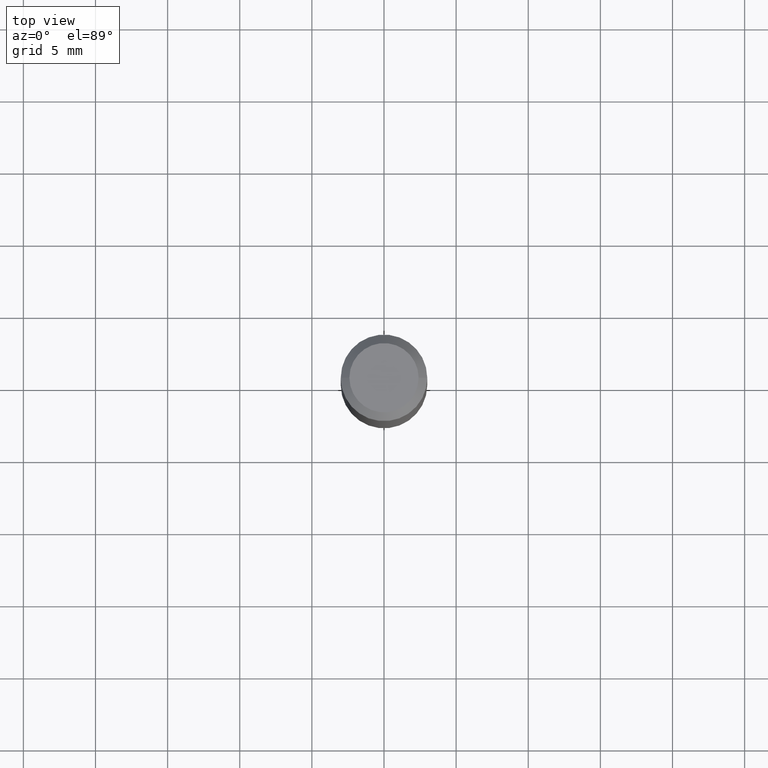
[diagram: clean part render]
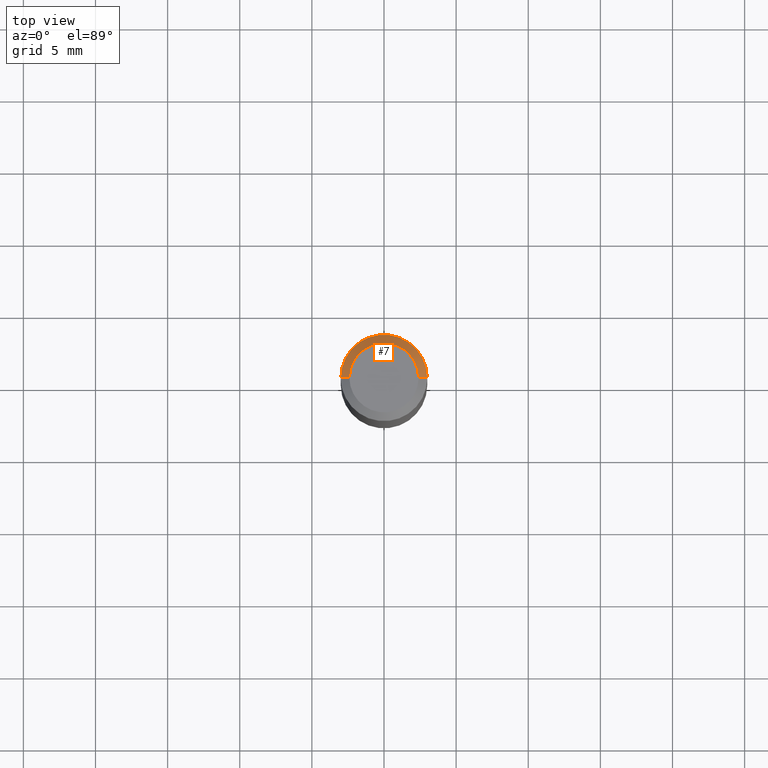
[diagram: same view with one face highlighted and labeled with its STEP entity id]
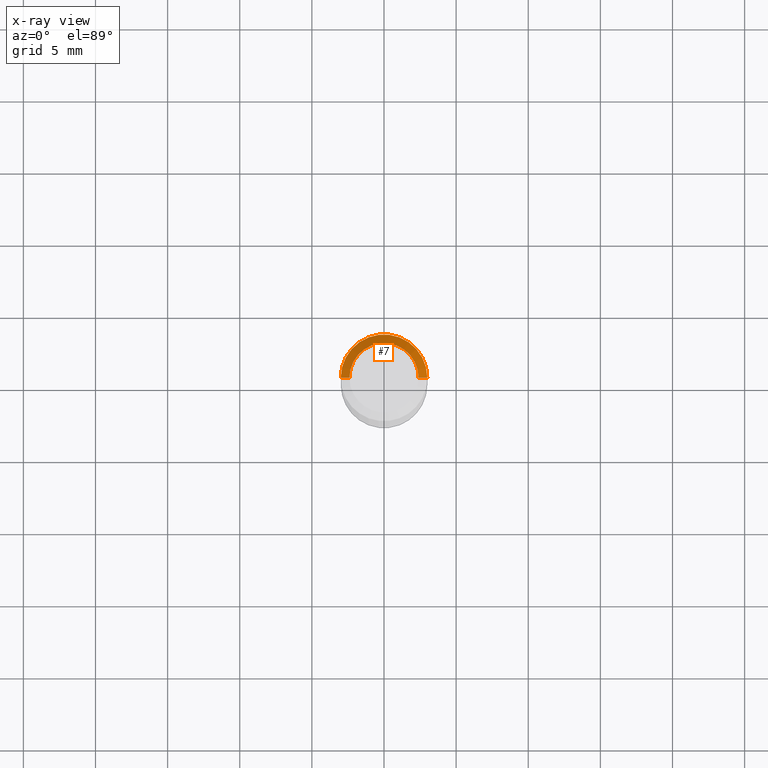
[diagram: x-ray of the same camera — body ghosted, the highlighted face saturated]
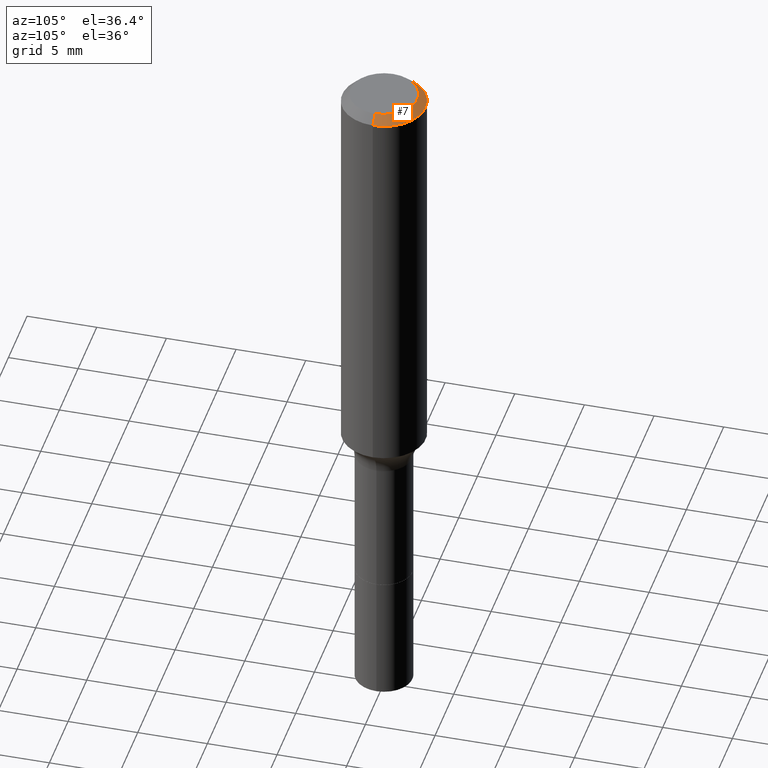
[diagram: same view with one face highlighted and labeled with its STEP entity id]
A machine part, top view. The second image highlights one B-rep face of the part: STEP entity #7.
The next image is the same camera in x-ray: the body ghosted, the highlighted face saturated — about 0% of this face is hidden behind the body in this view.
A second angle (auxiliary view) of the same face is appended — the face is thin or edge-on in the first view.
In plain terms, the highlighted conical surface has half-angle 45 deg.
Its self-contained STEP definition (entity closure, byte-faithful):
#5 = VECTOR ( 'NONE', #122, 39.37007874015748143 ) ;
#7 = ADVANCED_FACE ( 'NONE', ( #342 ), #13, .T. ) ;
#9 = VERTEX_POINT ( 'NONE', #379 ) ;
#13 = CONICAL_SURFACE ( 'NONE', #506, 0.1180999999999999966, 0.7853981633974461696 ) ;
#35 = EDGE_CURVE ( 'NONE', #9, #127, #478, .T. ) ;
#40 = CARTESIAN_POINT ( 'NONE',  ( -0.1180999999999999966, -1.207730962869736176E-15, -0.02362000000000014435 ) ) ;
#46 = LINE ( 'NONE', #136, #371 ) ;
#52 = ORIENTED_EDGE ( 'NONE', *, *, #106, .F. ) ;
#96 = ORIENTED_EDGE ( 'NONE', *, *, #35, .T. ) ;
#106 = EDGE_CURVE ( 'NONE', #9, #409, #213, .T. ) ;
#114 = AXIS2_PLACEMENT_3D ( 'NONE', #219, #443, #202 ) ;
#122 = DIRECTION ( 'NONE',  ( 0.7071067811865460184, -7.319954787623251312E-15, -0.7071067811865490160 ) ) ;
#127 = VERTEX_POINT ( 'NONE', #135 ) ;
#135 = CARTESIAN_POINT ( 'NONE',  ( 0.1180999999999999966, -9.071566814582237199E-16, -0.02362000000000014435 ) ) ;
#136 = CARTESIAN_POINT ( 'NONE',  ( -0.1180999999999999966, 7.422191030112725094E-16, -0.02362000000000014435 ) ) ;
#141 = CARTESIAN_POINT ( 'NONE',  ( 5.776197320209328408E-31, -8.246878922347560526E-17, -0.02362000000000014435 ) ) ;
#178 = AXIS2_PLACEMENT_3D ( 'NONE', #141, #348, #503 ) ;
#183 = EDGE_LOOP ( 'NONE', ( #52, #96, #251, #304 ) ) ;
#185 = DIRECTION ( 'NONE',  ( -0.7071067811865460184, 2.468850131082241283E-15, -0.7071067811865490160 ) ) ;
#202 = DIRECTION ( 'NONE',  ( 1.000000000000000000, -6.982962677686267499E-15, 4.875432709231658792E-29 ) ) ;
#213 = CIRCLE ( 'NONE', #114, 0.09447999999999998066 ) ;
#219 = CARTESIAN_POINT ( 'NONE',  ( 7.545787641473140628E-46, -1.077338491108201769E-31, -3.085620075131671975E-17 ) ) ;
#224 = DIRECTION ( 'NONE',  ( -1.000000000000000000, 6.982962677686266711E-15, 0.000000000000000000 ) ) ;
#251 = ORIENTED_EDGE ( 'NONE', *, *, #311, .T. ) ;
#263 = CARTESIAN_POINT ( 'NONE',  ( 5.776197320209328408E-31, -8.246878922347560526E-17, -0.02362000000000014435 ) ) ;
#304 = ORIENTED_EDGE ( 'NONE', *, *, #508, .F. ) ;
#311 = EDGE_CURVE ( 'NONE', #127, #461, #322, .T. ) ;
#322 = CIRCLE ( 'NONE', #178, 0.1180999999999999966 ) ;
#338 = DIRECTION ( 'NONE',  ( 2.445468806185136597E-29, -3.491481338843145583E-15, -1.000000000000000000 ) ) ;
#342 = FACE_OUTER_BOUND ( 'NONE', #183, .T. ) ;
#348 = DIRECTION ( 'NONE',  ( -2.445468806185136597E-29, 3.491481338843145583E-15, 1.000000000000000000 ) ) ;
#371 = VECTOR ( 'NONE', #185, 39.37007874015748143 ) ;
#379 = CARTESIAN_POINT ( 'NONE',  ( 0.09447999999999998066, -7.704367267948738690E-16, -3.085620075131172158E-17 ) ) ;
#386 = CARTESIAN_POINT ( 'NONE',  ( 0.1180999999999999966, -8.926936027602933910E-16, -0.02362000000000014435 ) ) ;
#409 = VERTEX_POINT ( 'NONE', #420 ) ;
#420 = CARTESIAN_POINT ( 'NONE',  ( -0.09447999999999998066, 7.009847083995354710E-16, -3.085620075132147757E-17 ) ) ;
#443 = DIRECTION ( 'NONE',  ( -2.445468806185136597E-29, 3.491481338843145583E-15, 1.000000000000000000 ) ) ;
#461 = VERTEX_POINT ( 'NONE', #40 ) ;
#478 = LINE ( 'NONE', #386, #5 ) ;
#503 = DIRECTION ( 'NONE',  ( 1.000000000000000000, -6.982962677686266711E-15, 0.000000000000000000 ) ) ;
#506 = AXIS2_PLACEMENT_3D ( 'NONE', #263, #338, #224 ) ;
#508 = EDGE_CURVE ( 'NONE', #409, #461, #46, .T. ) ;